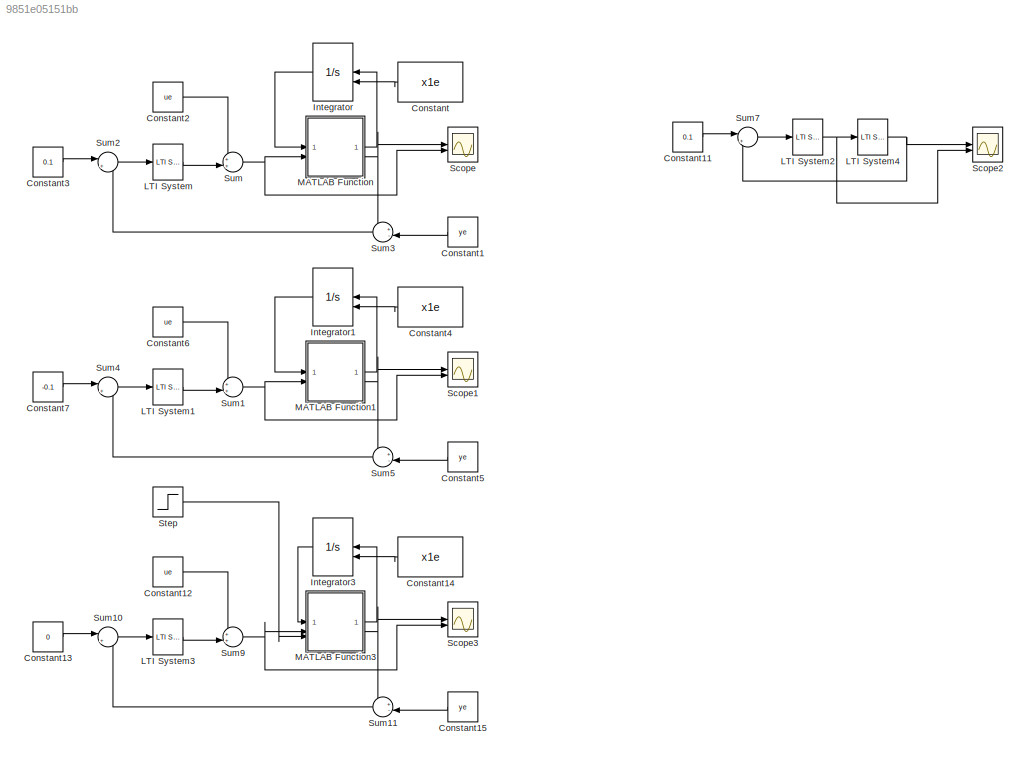
MODEL slx_9851e05151bb
KIND model
CONFIG AbsTol = auto
CONFIG EnableMultiTasking = off
CONFIG FixedStep = 0.01
CONFIG MaxStep = auto
CONFIG MinStep = auto
CONFIG RelTol = 1e-3
CONFIG SampleTimeConstraint = Unconstrained
CONFIG SolverName = ode4
CONFIG StartTime = 0.0
CONFIG StopTime = 3000
BLOCK [Constant] Constant
  Value = x1e
BLOCK [Constant] Constant1
  Value = ye
BLOCK [Constant] Constant11
  Value = 0.1
BLOCK [Constant] Constant12
  Value = ue
BLOCK [Constant] Constant13
  Value = 0
BLOCK [Constant] Constant14
  Value = x1e
BLOCK [Constant] Constant15
  Value = ye
BLOCK [Constant] Constant2
  Value = ue
BLOCK [Constant] Constant3
  Value = 0.1
BLOCK [Constant] Constant4
  Value = x1e
BLOCK [Constant] Constant5
  Value = ye
BLOCK [Constant] Constant6
  Value = ue
BLOCK [Constant] Constant7
  Value = -0.1
BLOCK [Integrator] Integrator
  InitialConditionSource = external
BLOCK [Integrator] Integrator1
  InitialConditionSource = external
BLOCK [Integrator] Integrator3
  InitialConditionSource = external
BLOCK [Reference] LTI System  REF=cstblocks/LTI System
  SourceBlock = cstblocks/LTI System
  SourceType = LTI Block
BLOCK [Reference] LTI System1  REF=cstblocks/LTI System
  SourceBlock = cstblocks/LTI System
  SourceType = LTI Block
BLOCK [Reference] LTI System2  REF=cstblocks/LTI System
  SourceBlock = cstblocks/LTI System
  SourceType = LTI Block
BLOCK [Reference] LTI System3  REF=cstblocks/LTI System
  SourceBlock = cstblocks/LTI System
  SourceType = LTI Block
BLOCK [Reference] LTI System4  REF=cstblocks/LTI System
  SourceBlock = cstblocks/LTI System
  SourceType = LTI Block
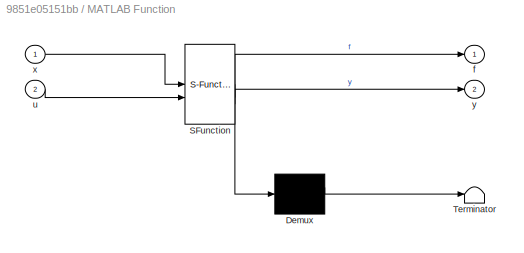
BLOCK [SubSystem] MATLAB Function
  ErrorFcn = Stateflow.Translate.translate
  PermitHierarchicalResolution = ExplicitOnly
  SFBlockType = MATLAB Function
  TreatAsAtomicUnit = on
BLOCK [Demux] MATLAB Function/ Demux 
  Outputs = 1
BLOCK [S-Function] MATLAB Function/ SFunction 
  EnableBusSupport = on
  FunctionName = sf_sfun
  PortCounts = [2 3]
  SFcnIsStateOwnerBlock = off
  SFunctionDeploymentMode = off
  Tag = Stateflow S-Function 2
BLOCK [Terminator] MATLAB Function/ Terminator 
BLOCK [Outport] MATLAB Function/f
BLOCK [Inport] MATLAB Function/u
  Port = 2
BLOCK [Inport] MATLAB Function/x
BLOCK [Outport] MATLAB Function/y
  Port = 2
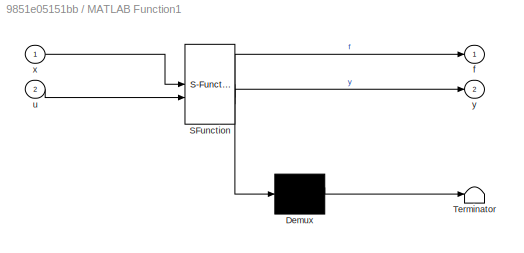
BLOCK [SubSystem] MATLAB Function1
  ErrorFcn = Stateflow.Translate.translate
  PermitHierarchicalResolution = ExplicitOnly
  SFBlockType = MATLAB Function
  TreatAsAtomicUnit = on
BLOCK [Demux] MATLAB Function1/ Demux 
  Outputs = 1
BLOCK [S-Function] MATLAB Function1/ SFunction 
  EnableBusSupport = on
  FunctionName = sf_sfun
  PortCounts = [2 3]
  SFcnIsStateOwnerBlock = off
  SFunctionDeploymentMode = off
  Tag = Stateflow S-Function 1
BLOCK [Terminator] MATLAB Function1/ Terminator 
BLOCK [Outport] MATLAB Function1/f
BLOCK [Inport] MATLAB Function1/u
  Port = 2
BLOCK [Inport] MATLAB Function1/x
BLOCK [Outport] MATLAB Function1/y
  Port = 2
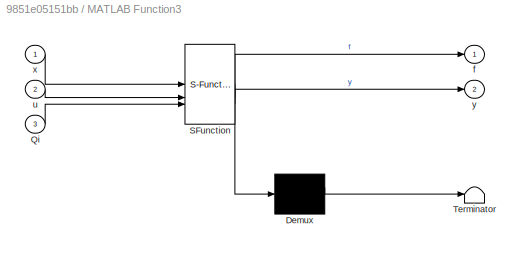
BLOCK [SubSystem] MATLAB Function3
  ErrorFcn = Stateflow.Translate.translate
  PermitHierarchicalResolution = ExplicitOnly
  SFBlockType = MATLAB Function
  TreatAsAtomicUnit = on
BLOCK [Demux] MATLAB Function3/ Demux 
  Outputs = 1
BLOCK [S-Function] MATLAB Function3/ SFunction 
  EnableBusSupport = on
  FunctionName = sf_sfun
  PortCounts = [3 3]
  SFcnIsStateOwnerBlock = off
  SFunctionDeploymentMode = off
  Tag = Stateflow S-Function 4
BLOCK [Terminator] MATLAB Function3/ Terminator 
BLOCK [Inport] MATLAB Function3/Qi
  Port = 3
BLOCK [Outport] MATLAB Function3/f
BLOCK [Inport] MATLAB Function3/u
  Port = 2
BLOCK [Inport] MATLAB Function3/x
BLOCK [Outport] MATLAB Function3/y
  Port = 2
BLOCK [Scope] Scope
  Floating = off
  NumInputPorts = 2
  ScopeSpecificationString = Simulink.scopes.TimeScopeBlockCfg('CurrentConfiguration', extmgr.ConfigurationSet(extmgr.Configuration('Core','General UI',true,'FigureColor',[1 1 1]),extmgr.Configuration('Core','Source UI',true),extmgr.Configuration('Sources','WiredSimulink',true),extmgr.Configuration('Visuals','Time Domain',true,'SerializedDisplays',{struct('MinYLimReal','0.43651','MaxYLimReal','0.57142','YLabelReal','','MinYLi...<+3790ch>
BLOCK [Scope] Scope1
  Floating = off
  NumInputPorts = 2
  ScopeSpecificationString = Simulink.scopes.TimeScopeBlockCfg('CurrentConfiguration', extmgr.ConfigurationSet(extmgr.Configuration('Core','General UI',true,'FigureColor',[1 1 1]),extmgr.Configuration('Core','Source UI',true),extmgr.Configuration('Sources','WiredSimulink',true,'DataLoggingVariableName','ScopeData1'),extmgr.Configuration('Visuals','Time Domain',true,'SerializedDisplays',{struct('MinYLimReal','0.32897','MaxYLim...<+3874ch>
BLOCK [Scope] Scope2
  Floating = off
  NumInputPorts = 2
  ScopeSpecificationString = Simulink.scopes.TimeScopeBlockCfg('CurrentConfiguration', extmgr.ConfigurationSet(extmgr.Configuration('Core','General UI',true,'FigureColor',[1 1 1]),extmgr.Configuration('Core','Source UI',true),extmgr.Configuration('Sources','WiredSimulink',true,'DataLoggingVariableName','ScopeData1'),extmgr.Configuration('Visuals','Time Domain',true,'SerializedDisplays',{struct('MinYLimReal','-0.0135','MaxYLim...<+3835ch>
BLOCK [Scope] Scope3
  Floating = off
  NumInputPorts = 2
  ScopeSpecificationString = Simulink.scopes.TimeScopeBlockCfg('CurrentConfiguration', extmgr.ConfigurationSet(extmgr.Configuration('Core','General UI',true,'FigureColor',[1 1 1]),extmgr.Configuration('Core','Source UI',true),extmgr.Configuration('Sources','WiredSimulink',true,'DataLoggingVariableName','ScopeData3'),extmgr.Configuration('Visuals','Time Domain',true,'SerializedDisplays',{struct('MinYLimReal','0.44875','MaxYLim...<+3906ch>
BLOCK [Step] Step
  After = Qi*1.1
  Before = Qi
  SampleTime = 0
  Time = 100
BLOCK [Sum] Sum
  Inputs = ++|
BLOCK [Sum] Sum1
  Inputs = ++|
BLOCK [Sum] Sum10
  Inputs = |+-
BLOCK [Sum] Sum11
  Inputs = +-|
BLOCK [Sum] Sum2
  Inputs = |+-
BLOCK [Sum] Sum3
  Inputs = +-|
BLOCK [Sum] Sum4
  Inputs = |+-
BLOCK [Sum] Sum5
  Inputs = +-|
BLOCK [Sum] Sum7
  Inputs = |+-
BLOCK [Sum] Sum9
  Inputs = ++|
LINE Constant11:1 -> Sum7:1
LINE Constant12:1 -> Sum9:1
LINE Constant13:1 -> Sum10:1
LINE Constant14:1 -> Integrator3:2
LINE Constant15:1 -> Sum11:2
LINE Constant1:1 -> Sum3:2
LINE Constant2:1 -> Sum:1
LINE Constant3:1 -> Sum2:1
LINE Constant4:1 -> Integrator1:2
LINE Constant5:1 -> Sum5:2
LINE Constant6:1 -> Sum1:1
LINE Constant7:1 -> Sum4:1
LINE Constant:1 -> Integrator:2
LINE Integrator1:1 -> MATLAB Function1:1
LINE Integrator3:1 -> MATLAB Function3:1
LINE Integrator:1 -> MATLAB Function:1
LINE LTI System1:1 -> Sum1:2
NET LTI System2:1 -> LTI System4:1, Scope2:2
LINE LTI System3:1 -> Sum9:2
NET LTI System4:1 -> Scope2:1, Sum7:2
LINE LTI System:1 -> Sum:2
LINE MATLAB Function1:1 -> Integrator1:1
NET MATLAB Function1:2 -> Scope1:1, Sum5:1
LINE MATLAB Function3:1 -> Integrator3:1
NET MATLAB Function3:2 -> Scope3:1, Sum11:1
LINE MATLAB Function:1 -> Integrator:1
NET MATLAB Function:2 -> Scope:1, Sum3:1
LINE Step:1 -> MATLAB Function3:3
LINE Sum10:1 -> LTI System3:1
LINE Sum11:1 -> Sum10:2
NET Sum1:1 -> MATLAB Function1:2, Scope1:2
LINE Sum2:1 -> LTI System:1
LINE Sum3:1 -> Sum2:2
LINE Sum4:1 -> LTI System1:1
LINE Sum5:1 -> Sum4:2
LINE Sum7:1 -> LTI System2:1
NET Sum9:1 -> MATLAB Function3:2, Scope3:2
NET Sum:1 -> MATLAB Function:2, Scope:2
note: NET lines group one-source signal fan-out (src -> all destinations, sorted); 1:1 wires keep LINE
CHART MATLAB Function1 states=1 transitions=1
  STATE_LABEL 'eML_blk_kernel()'
  STATE_LABEL 'SCRIPT:\nfunction [f,y] = fcn(x,u)\n\nQi = 8 / (1000*60);\nd = 0.01065;\nl1 = 0.1;\nl2 = 0.4;\nL = 0.9;\nAo = pi * (d/2)^2;\ng = 9.8;\n\nf = (Qi - Ao*u*sqrt(2*g*x)) / (l1 + (x/L)*(l2-l1))^2;\n\ny = x;\n'
CHART MATLAB Function states=1 transitions=1
  STATE_LABEL 'eML_blk_kernel()'
  STATE_LABEL 'SCRIPT:\nfunction [f,y] = fcn(x,u)\n\nQi = 8 / (1000*60);\nd = 0.01065;\nl1 = 0.1;\nl2 = 0.4;\nL = 0.9;\nAo = pi * (d/2)^2;\ng = 9.8;\n\nf = (Qi - Ao*u*sqrt(2*g*x)) / (l1 + (x/L)*(l2-l1))^2;\n\ny = x;\n'
CHART MATLAB Function3 states=1 transitions=1
  STATE_LABEL 'eML_blk_kernel()'
  STATE_LABEL 'SCRIPT:\nfunction [f,y] = fcn(x,u, Qi)\n\nd = 0.01065;\nl1 = 0.1;\nl2 = 0.4;\nL = 0.9;\nAo = pi * (d/2)^2;\ng = 9.8;\n\nf = (Qi - Ao*u*sqrt(2*g*x)) / (l1 + (x/L)*(l2-l1))^2;\n\ny = x;\n'
CHART  states=0 transitions=0
CHART  states=0 transitions=0
CHART  states=0 transitions=0
